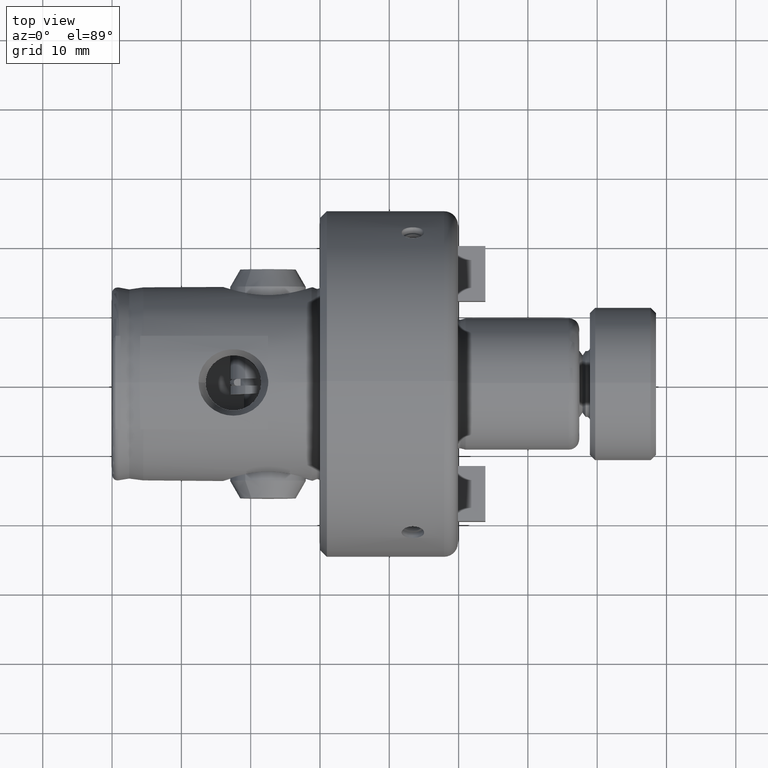
[diagram: clean part render]
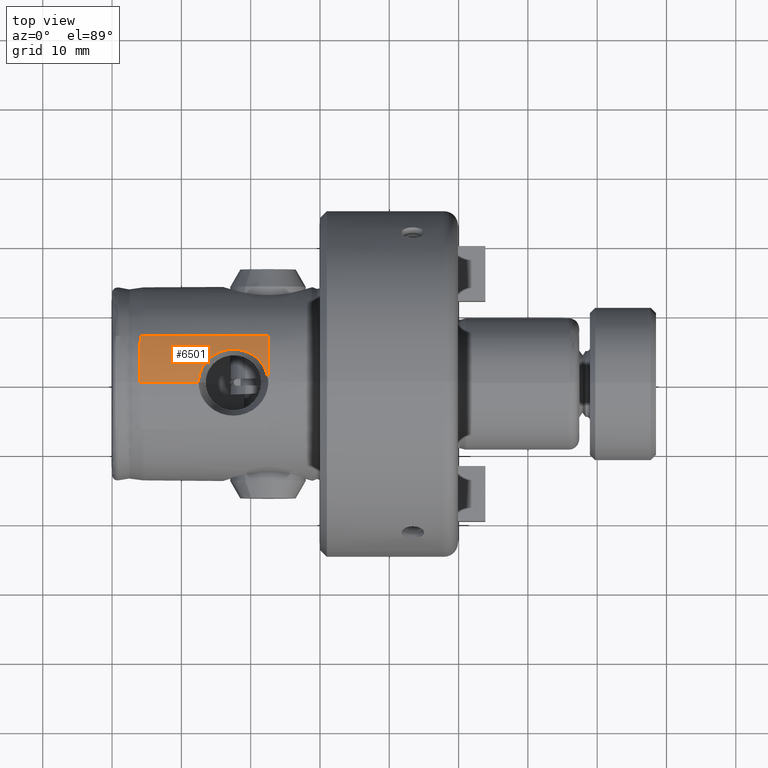
[diagram: same view with one face highlighted and labeled with its STEP entity id]
A machine part, top view. The second image highlights one B-rep face of the part: STEP entity #6501.
In plain terms, the highlighted cylindrical surface (partial cylindrical patch) has radius 14 mm, axis along (-1, 0, 0).
Its self-contained STEP definition (entity closure, byte-faithful):
#16 = CARTESIAN_POINT ( 'NONE',  ( 14.88320327313663000, 4.105288464221607600, 13.31575603049277100 ) ) ;
#95 = CARTESIAN_POINT ( 'NONE',  ( 19.70300374406269800, 4.321187803944915200, 13.24734774208121700 ) ) ;
#553 = CARTESIAN_POINT ( 'NONE',  ( 15.16081846038932600, 4.255272801819452300, 13.26826299753349400 ) ) ;
#759 = CARTESIAN_POINT ( 'NONE',  ( 22.46815507062160600, 0.7758177879486406500, 13.91205545619021000 ) ) ;
#1081 = CARTESIAN_POINT ( 'NONE',  ( 4.063930132751250000, 6.750000000000002700, 12.19529657203607800 ) ) ;
#1101 = CARTESIAN_POINT ( 'NONE',  ( 4.063930132751250000, 6.750000000000002700, 12.19529657203607800 ) ) ;
#1150 = VERTEX_POINT ( 'NONE', #6187 ) ;
#1183 = CARTESIAN_POINT ( 'NONE',  ( 17.58147435945846500, 4.804815436923464100, 13.07967536905464100 ) ) ;
#1267 = EDGE_CURVE ( 'NONE', #7475, #3621, #7102, .T. ) ;
#1299 = CARTESIAN_POINT ( 'NONE',  ( 13.48251862716116600, 2.895681691042831100, 13.62970044885652900 ) ) ;
#1341 = EDGE_CURVE ( 'NONE', #1150, #7475, #5072, .T. ) ;
#1354 = CARTESIAN_POINT ( 'NONE',  ( 12.63710893817758300, 1.241804989204113600, 13.87816752293798400 ) ) ;
#1393 = ORIENTED_EDGE ( 'NONE', *, *, #1341, .T. ) ;
#1476 = DIRECTION ( 'NONE',  ( -1.000000000000000000, 0.0000000000000000000, 0.0000000000000000000 ) ) ;
#1479 = CARTESIAN_POINT ( 'NONE',  ( 22.40453395151484300, 1.081976593092596200, 13.89132448406629200 ) ) ;
#1507 = CARTESIAN_POINT ( 'NONE',  ( 18.82625063700439600, 4.635677798351990100, 13.14063342962991500 ) ) ;
#1626 = CYLINDRICAL_SURFACE ( 'NONE', #9545, 14.00000000000000000 ) ;
#1660 = VERTEX_POINT ( 'NONE', #7921 ) ;
#1758 = CARTESIAN_POINT ( 'NONE',  ( 22.50000000000000000, 0.4601276684633452400, 13.92243661871350100 ) ) ;
#1792 = CARTESIAN_POINT ( 'NONE',  ( 4.008842504552363000, 2.338295882475253300, 13.73650299281233000 ) ) ;
#1891 = CARTESIAN_POINT ( 'NONE',  ( 13.68421328373933800, 3.134549875054107600, 13.57641583679815000 ) ) ;
#1987 = CARTESIAN_POINT ( 'NONE',  ( 16.95631710343901200, 4.777344164573415600, 13.08968071146244200 ) ) ;
#2011 = CARTESIAN_POINT ( 'NONE',  ( 14.12874806881846500, 3.569053009795603700, 13.46927356704509500 ) ) ;
#2234 = CARTESIAN_POINT ( 'NONE',  ( 12.47684628644831400, 1.731427626524877800E-015, 13.93000000000000700 ) ) ;
#2313 = CARTESIAN_POINT ( 'NONE',  ( 19.41737450338034100, 4.443254278193242300, 13.20658976098555800 ) ) ;
#2322 = CARTESIAN_POINT ( 'NONE',  ( 13.13185650207808000, 2.388188798697222100, 13.72722142701266900 ) ) ;
#2394 = CARTESIAN_POINT ( 'NONE',  ( 12.98082962920036100, 2.117686012754358900, 13.77197944323566100 ) ) ;
#2469 = CARTESIAN_POINT ( 'NONE',  ( 22.50000000000000000, 0.0000000000000000000, -0.06999999999999996500 ) ) ;
#2810 = VECTOR ( 'NONE', #8408, 1000.000000000000000 ) ;
#2833 = CARTESIAN_POINT ( 'NONE',  ( 4.001924119433127200, 1.750902840981886100E-015, 13.93000000000000000 ) ) ;
#2948 = CARTESIAN_POINT ( 'NONE',  ( 21.21533237231318100, 3.242834235621111300, 13.55142747085609000 ) ) ;
#3015 = CARTESIAN_POINT ( 'NONE',  ( 20.51195733871938000, 3.850540727424420300, 13.39157054133119100 ) ) ;
#3089 = VECTOR ( 'NONE', #1476, 1000.000000000000000 ) ;
#3293 = EDGE_CURVE ( 'NONE', #4006, #1150, #7304, .T. ) ;
#3333 = AXIS2_PLACEMENT_3D ( 'NONE', #3881, #8332, #4651 ) ;
#3621 = VERTEX_POINT ( 'NONE', #2833 ) ;
#3713 = CARTESIAN_POINT ( 'NONE',  ( 20.99145729932012100, 3.461798843896762200, 13.49674220648365100 ) ) ;
#3745 = EDGE_CURVE ( 'NONE', #4006, #1660, #5074, .T. ) ;
#3762 = CARTESIAN_POINT ( 'NONE',  ( 16.02957679376923000, 4.595982466686491500, 13.15430995447273200 ) ) ;
#3860 = CARTESIAN_POINT ( 'NONE',  ( 14.36870076561076800, 3.762696217421727800, 13.41606595926865500 ) ) ;
#3881 = CARTESIAN_POINT ( 'NONE',  ( 22.50000000000000000, 0.0000000000000000000, -0.06999999999999996500 ) ) ;
#3954 = CARTESIAN_POINT ( 'NONE',  ( 4.007181442704528300, 2.045041134614189900, 13.78296149417418600 ) ) ;
#4006 = VERTEX_POINT ( 'NONE', #1758 ) ;
#4019 = EDGE_LOOP ( 'NONE', ( #5816, #5874, #4720, #1393, #7684 ) ) ;
#4045 = CARTESIAN_POINT ( 'NONE',  ( 4.001924119433127200, 0.5841848287891982000, 13.93000000000000500 ) ) ;
#4215 = CARTESIAN_POINT ( 'NONE',  ( 16.64022823126284900, 4.734917589269099600, 13.10520337713564000 ) ) ;
#4387 = CARTESIAN_POINT ( 'NONE',  ( 12.54173869187747500, 0.7842719432332240200, 13.90885123101486300 ) ) ;
#4651 = DIRECTION ( 'NONE',  ( 0.0000000000000000000, 0.0000000000000000000, -1.000000000000000000 ) ) ;
#4720 = ORIENTED_EDGE ( 'NONE', *, *, #3293, .T. ) ;
#5072 = LINE ( 'NONE', #7137, #3089 ) ;
#5074 = B_SPLINE_CURVE_WITH_KNOTS ( 'NONE', 3,
 ( #5200, #759, #1479, #5233, #7388, #6745, #7449, #2948, #3713, #3015, #8880, #95, #2313, #1507, #7484, #8216, #1183, #1987, #4215, #3762, #5257, #553, #16, #3860, #2011, #1891, #1299, #2322, #2394, #6957, #1354, #4387, #7832, #6691, #5911, #2234 ),
 .UNSPECIFIED., .F., .F.,
 ( 4, 2, 2, 2, 2, 2, 2, 2, 2, 2, 2, 2, 2, 2, 2, 2, 2, 4 ),
 ( 1.968493120727073900E-006, 0.0009402772857620383800, 0.001878586078403349800, 0.002816894871044662100, 0.003755203663685974600, 0.004693512456327287100, 0.005631821248968599600, 0.006570130041609913000, 0.007508438834251225500, 0.008446747626892537100, 0.009385056419533851400, 0.01032336521217516400, 0.01126167400481647600, 0.01219998279745779100, 0.01313829159009910700, 0.01407660038274042100, 0.01454575477906107700, 0.01501490917538173300 ),
 .UNSPECIFIED. ) ;
#5200 = CARTESIAN_POINT ( 'NONE',  ( 22.50000000000000000, 0.4601276684633452400, 13.92243661871350100 ) ) ;
#5233 = CARTESIAN_POINT ( 'NONE',  ( 22.21766020858801800, 1.676580246922704700, 13.83245781770323800 ) ) ;
#5257 = CARTESIAN_POINT ( 'NONE',  ( 15.73376815742085600, 4.500080519428112600, 13.18767256074531200 ) ) ;
#5555 = CARTESIAN_POINT ( 'NONE',  ( 22.50000000000000000, 0.0000000000000000000, 13.93000000000000000 ) ) ;
#5596 = LINE ( 'NONE', #5555, #2810 ) ;
#5816 = ORIENTED_EDGE ( 'NONE', *, *, #7404, .F. ) ;
#5874 = ORIENTED_EDGE ( 'NONE', *, *, #3745, .F. ) ;
#5911 = CARTESIAN_POINT ( 'NONE',  ( 12.47684628644833000, 0.1575804184599072200, 13.93000000000000300 ) ) ;
#6142 = DIRECTION ( 'NONE',  ( 0.0000000000000000000, 0.0000000000000000000, 1.000000000000000000 ) ) ;
#6147 = CARTESIAN_POINT ( 'NONE',  ( 4.001924119433127200, 1.750902840981886100E-015, 13.93000000000000000 ) ) ;
#6182 = CARTESIAN_POINT ( 'NONE',  ( 4.015105193254598200, 3.205098321252780800, 13.56133310561265800 ) ) ;
#6187 = CARTESIAN_POINT ( 'NONE',  ( 22.50000000000000000, 6.750000000000002700, 12.19529657203607800 ) ) ;
#6214 = CARTESIAN_POINT ( 'NONE',  ( 4.028160893562466400, 4.624277538222520100, 13.19613798400256500 ) ) ;
#6241 = DIRECTION ( 'NONE',  ( -1.000000000000000000, 0.0000000000000000000, 0.0000000000000000000 ) ) ;
#6485 = FACE_OUTER_BOUND ( 'NONE', #4019, .T. ) ;
#6501 = ADVANCED_FACE ( 'NONE', ( #6485 ), #1626, .T. ) ;
#6691 = CARTESIAN_POINT ( 'NONE',  ( 12.48511315330150300, 0.3169006035190860000, 13.92728837994936500 ) ) ;
#6745 = CARTESIAN_POINT ( 'NONE',  ( 21.79120719097714000, 2.512659935918506900, 13.70543717439268000 ) ) ;
#6957 = CARTESIAN_POINT ( 'NONE',  ( 12.73127365973367900, 1.539623908669135500, 13.84813734575961800 ) ) ;
#7004 = CARTESIAN_POINT ( 'NONE',  ( 4.003226289880331000, 1.168467299755222600, 13.89358212547012000 ) ) ;
#7102 = B_SPLINE_CURVE_WITH_KNOTS ( 'NONE', 3,
 ( #1101, #8470, #6214, #6182, #7596, #1792, #3954, #7004, #4045, #6147 ),
 .UNSPECIFIED., .F., .F.,
 ( 4, 2, 2, 2, 4 ),
 ( 2.250816525802824800E-007, 0.003505336362108057500, 0.004381614182221926600, 0.005257892002335796600, 0.007010447642563538300 ),
 .UNSPECIFIED. ) ;
#7137 = CARTESIAN_POINT ( 'NONE',  ( 22.50000000000000000, 6.750000000000002700, 12.19529657203607800 ) ) ;
#7304 = CIRCLE ( 'NONE', #3333, 14.00000000000000000 ) ;
#7388 = CARTESIAN_POINT ( 'NONE',  ( 22.09244488166293200, 1.967940313107411100, 13.79374192717307100 ) ) ;
#7404 = EDGE_CURVE ( 'NONE', #1660, #3621, #5596, .T. ) ;
#7449 = CARTESIAN_POINT ( 'NONE',  ( 21.61558782100437500, 2.767313981030949500, 13.65593288464940300 ) ) ;
#7475 = VERTEX_POINT ( 'NONE', #1081 ) ;
#7484 = CARTESIAN_POINT ( 'NONE',  ( 18.51779562600925600, 4.706362817278648700, 13.11530113195605000 ) ) ;
#7596 = CARTESIAN_POINT ( 'NONE',  ( 4.012805432469750000, 2.918230177048434900, 13.62565935463862100 ) ) ;
#7684 = ORIENTED_EDGE ( 'NONE', *, *, #1267, .T. ) ;
#7832 = CARTESIAN_POINT ( 'NONE',  ( 12.51759547805131900, 0.6298221015118394800, 13.91670197381867900 ) ) ;
#7921 = CARTESIAN_POINT ( 'NONE',  ( 12.47684628644831400, 1.731427626524877800E-015, 13.93000000000000700 ) ) ;
#8216 = CARTESIAN_POINT ( 'NONE',  ( 17.89377209107150400, 4.790858215012558900, 13.08483540269019100 ) ) ;
#8332 = DIRECTION ( 'NONE',  ( -1.000000000000000000, -0.0000000000000000000, -0.0000000000000000000 ) ) ;
#8408 = DIRECTION ( 'NONE',  ( -1.000000000000000000, 0.0000000000000000000, 0.0000000000000000000 ) ) ;
#8470 = CARTESIAN_POINT ( 'NONE',  ( 4.043514148813746300, 5.711822042363000800, 12.76664037712814300 ) ) ;
#8880 = CARTESIAN_POINT ( 'NONE',  ( 20.25399742519827800, 4.022880967685241100, 13.34047514595638300 ) ) ;
#9545 = AXIS2_PLACEMENT_3D ( 'NONE', #2469, #6241, #6142 ) ;